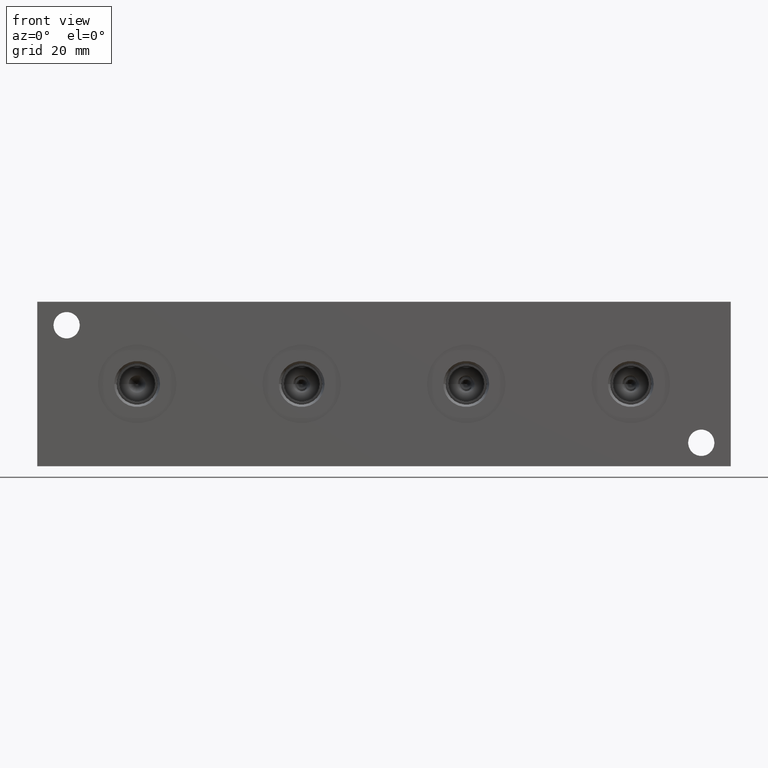
[diagram: clean part render]
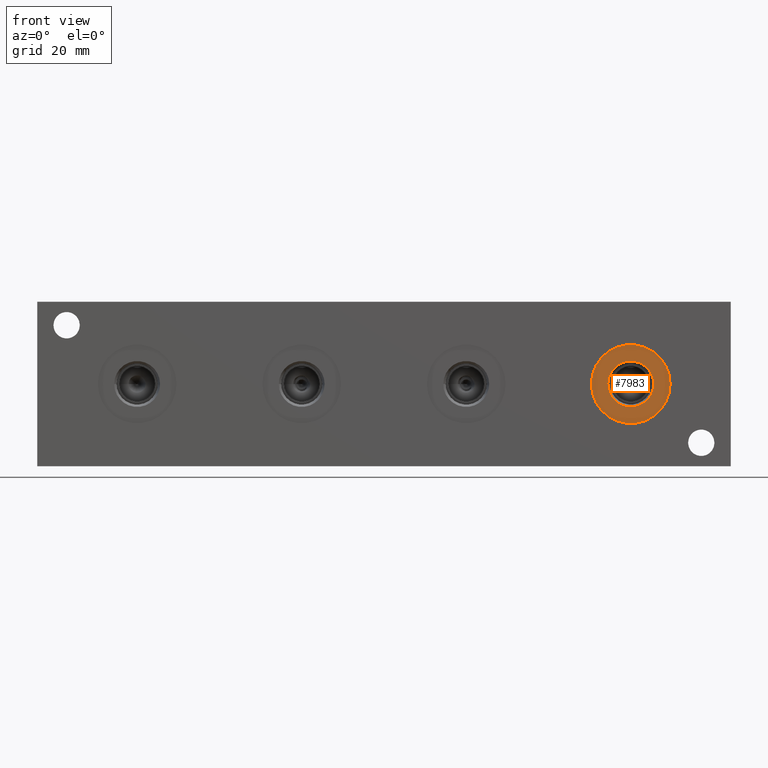
[diagram: same view with one face highlighted and labeled with its STEP entity id]
A machine part, front view. The second image highlights one B-rep face of the part: STEP entity #7983.
In plain terms, the highlighted planar face has unit normal (0, -1, 0).
Its self-contained STEP definition (entity closure, byte-faithful):
#219=CIRCLE('',#8428,10.6426);
#220=CIRCLE('',#8429,10.6426);
#221=CIRCLE('',#8430,6.1976);
#322=FACE_BOUND('',#1447,.T.);
#990=FACE_OUTER_BOUND('',#1446,.T.);
#1446=EDGE_LOOP('',(#6789,#6790));
#1447=EDGE_LOOP('',(#6791));
#3670=VERTEX_POINT('',#13590);
#3671=VERTEX_POINT('',#13591);
#3672=VERTEX_POINT('',#13594);
#4740=EDGE_CURVE('',#3670,#3671,#219,.T.);
#4741=EDGE_CURVE('',#3671,#3670,#220,.T.);
#4742=EDGE_CURVE('',#3672,#3672,#221,.T.);
#6789=ORIENTED_EDGE('',*,*,#4740,.T.);
#6790=ORIENTED_EDGE('',*,*,#4741,.T.);
#6791=ORIENTED_EDGE('',*,*,#4742,.F.);
#7315=PLANE('',#8427);
#7983=ADVANCED_FACE('',(#990,#322),#7315,.T.);
#8427=AXIS2_PLACEMENT_3D('',#13589,#9986,#9987);
#8428=AXIS2_PLACEMENT_3D('',#13592,#9988,#9989);
#8429=AXIS2_PLACEMENT_3D('',#13593,#9990,#9991);
#8430=AXIS2_PLACEMENT_3D('',#13595,#9992,#9993);
#9986=DIRECTION('center_axis',(0.,-1.,0.));
#9987=DIRECTION('ref_axis',(1.,0.,0.));
#9988=DIRECTION('center_axis',(0.,-1.,0.));
#9989=DIRECTION('ref_axis',(1.,0.,0.));
#9990=DIRECTION('center_axis',(0.,-1.,0.));
#9991=DIRECTION('ref_axis',(1.,0.,0.));
#9992=DIRECTION('center_axis',(0.,-1.,0.));
#9993=DIRECTION('ref_axis',(1.,0.,0.));
#13589=CARTESIAN_POINT('Origin',(160.3248,0.7874,22.225));
#13590=CARTESIAN_POINT('',(170.9674,0.7874,22.225));
#13591=CARTESIAN_POINT('',(149.6822,0.7874,22.225));
#13592=CARTESIAN_POINT('Origin',(160.3248,0.7874,22.225));
#13593=CARTESIAN_POINT('Origin',(160.3248,0.7874,22.225));
#13594=CARTESIAN_POINT('',(154.1272,0.7874,22.225));
#13595=CARTESIAN_POINT('Origin',(160.3248,0.7874,22.225));